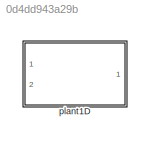
MODEL slx_0d4dd943a29b
KIND library
CONFIG AbsTol = auto
CONFIG EnableMultiTasking = off
CONFIG FixedStep = auto
CONFIG MaxStep = auto
CONFIG MinStep = auto
CONFIG RelTol = 1e-3
CONFIG SampleTimeConstraint = Unconstrained
CONFIG Solver = VariableStepAuto
CONFIG SolverName = VariableStepAuto
CONFIG StartTime = 0.0
CONFIG StopTime = 10.0
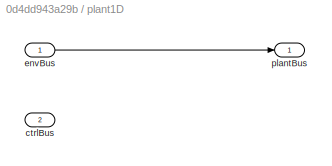
BLOCK [SubSystem] plant1D
  Ports = [2, 1]
  RequestExecContextInheritance = off
BLOCK [Inport] plant1D/ctrlBus
  Port = 2
BLOCK [Inport] plant1D/envBus
BLOCK [Outport] plant1D/plantBus
LINE plant1D/envBus:1 -> plant1D/plantBus:1
